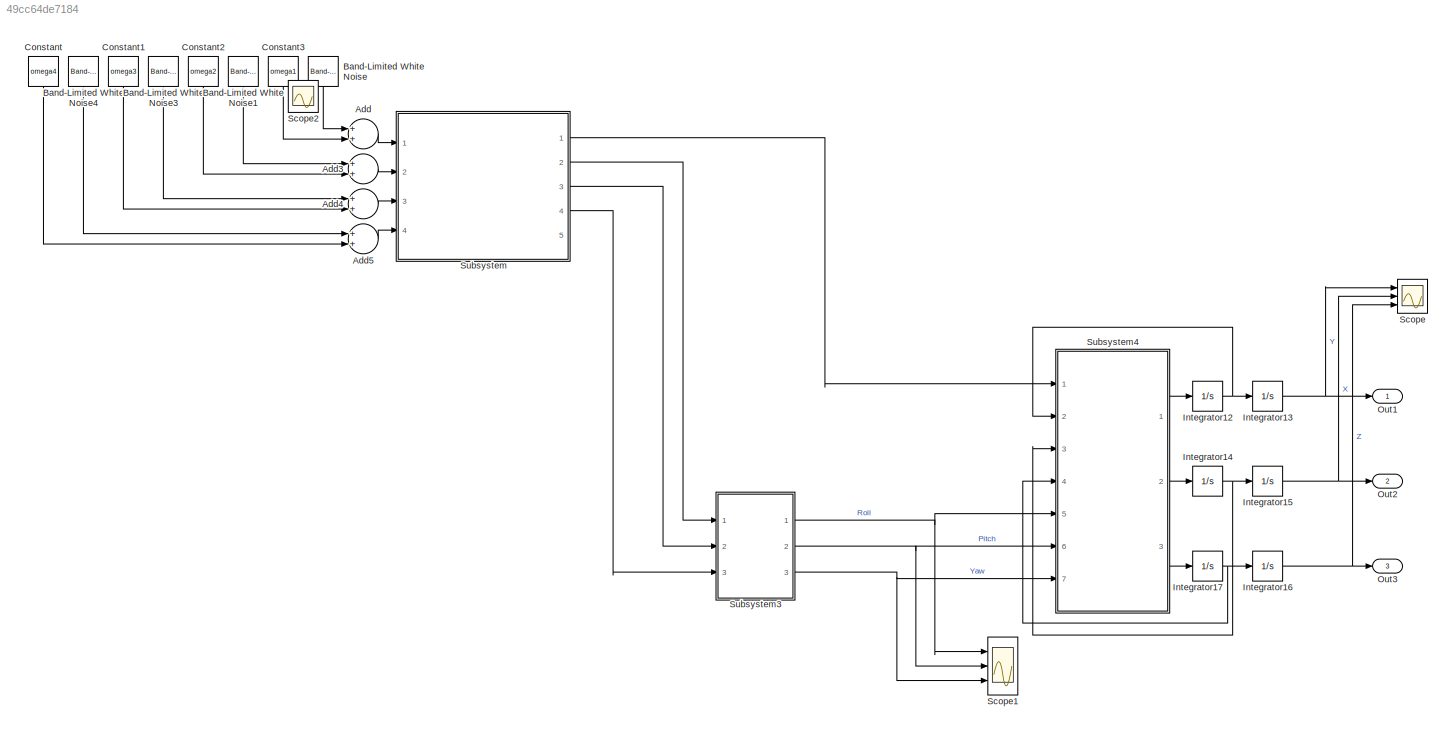
MODEL slx_49cc64de7184
KIND model
CONFIG AbsTol = auto
CONFIG EnableMultiTasking = off
CONFIG FixedStep = auto
CONFIG MaxStep = auto
CONFIG MinStep = auto
CONFIG RelTol = 1e-3
CONFIG SampleTimeConstraint = Unconstrained
CONFIG Solver = VariableStepAuto
CONFIG SolverName = VariableStepAuto
CONFIG StartTime = 0.0
CONFIG StopTime = 30
BLOCK [Sum] Add
  InputSameDT = off
  OutDataTypeStr = Inherit: Inherit via internal rule
  Ports = [2, 1]
  SaturateOnIntegerOverflow = off
BLOCK [Sum] Add3
  InputSameDT = off
  OutDataTypeStr = Inherit: Inherit via internal rule
  Ports = [2, 1]
  SaturateOnIntegerOverflow = off
BLOCK [Sum] Add4
  InputSameDT = off
  OutDataTypeStr = Inherit: Inherit via internal rule
  Ports = [2, 1]
  SaturateOnIntegerOverflow = off
BLOCK [Sum] Add5
  InputSameDT = off
  OutDataTypeStr = Inherit: Inherit via internal rule
  Ports = [2, 1]
  SaturateOnIntegerOverflow = off
BLOCK [Reference] Band-Limited White Noise  REF=simulink/Sources/Band-Limited
White Noise
  Ports = [0, 1]
  SourceBlock = simulink/Sources/Band-Limited\nWhite Noise
  SourceProductBaseCode = SL
  SourceProductName = Simulink
  SourceType = Band-Limited White Noise.
BLOCK [Reference] Band-Limited White Noise1  REF=simulink/Sources/Band-Limited
White Noise
  Ports = [0, 1]
  SourceBlock = simulink/Sources/Band-Limited\nWhite Noise
  SourceProductBaseCode = SL
  SourceProductName = Simulink
  SourceType = Band-Limited White Noise.
BLOCK [Reference] Band-Limited White Noise3  REF=simulink/Sources/Band-Limited
White Noise
  Ports = [0, 1]
  SourceBlock = simulink/Sources/Band-Limited\nWhite Noise
  SourceProductBaseCode = SL
  SourceProductName = Simulink
  SourceType = Band-Limited White Noise.
BLOCK [Reference] Band-Limited White Noise4  REF=simulink/Sources/Band-Limited
White Noise
  Ports = [0, 1]
  SourceBlock = simulink/Sources/Band-Limited\nWhite Noise
  SourceProductBaseCode = SL
  SourceProductName = Simulink
  SourceType = Band-Limited White Noise.
BLOCK [Constant] Constant
  Value = omega4
BLOCK [Constant] Constant1
  Value = omega3
BLOCK [Constant] Constant2
  Value = omega2
BLOCK [Constant] Constant3
  Value = omega1
BLOCK [Integrator] Integrator12
  Ports = [1, 1]
BLOCK [Integrator] Integrator13
  Ports = [1, 1]
BLOCK [Integrator] Integrator14
  Ports = [1, 1]
BLOCK [Integrator] Integrator15
  Ports = [1, 1]
BLOCK [Integrator] Integrator16
  Ports = [1, 1]
BLOCK [Integrator] Integrator17
  Ports = [1, 1]
BLOCK [Outport] Out1
  IconDisplay = Port number
BLOCK [Outport] Out2
  IconDisplay = Port number
  Port = 2
BLOCK [Outport] Out3
  IconDisplay = Port number
  Port = 3
BLOCK [Scope] Scope
  Floating = off
  NumInputPorts = 3
  Ports = [3]
  ScopeSpecificationString = Simulink.scopes.TimeScopeBlockCfg('CurrentConfiguration', extmgr.ConfigurationSet(extmgr.Configuration('Core','General UI',true),extmgr.Configuration('Core','Source UI',true),extmgr.Configuration('Sources','WiredSimulink',true,'DataLoggingVariableName','ScopeData1'),extmgr.Configuration('Visuals','Time Domain',true,'SerializedDisplays',{struct('MinYLimReal','-1102.5524','MaxYLimReal','4415.0885','...<+1524ch>
BLOCK [Scope] Scope1
  Floating = off
  NumInputPorts = 3
  Ports = [3]
  ScopeSpecificationString = Simulink.scopes.TimeScopeBlockCfg('CurrentConfiguration', extmgr.ConfigurationSet(extmgr.Configuration('Core','General UI',true,'FigureColor',[0.941176470588235 0.941176470588235 0.941176470588235]),extmgr.Configuration('Core','Source UI',true),extmgr.Configuration('Sources','WiredSimulink',true,'DataLoggingVariableName','ScopeData1'),extmgr.Configuration('Visuals','Time Domain',true,'SerializedDi...<+1882ch>
BLOCK [Scope] Scope2
  Floating = off
  IOType = viewer
  NumInputPorts = 1
  Ports = []
  ScopeSpecificationString = Simulink.scopes.TimeScopeBlockCfg('CurrentConfiguration', extmgr.ConfigurationSet(extmgr.Configuration('Core','General UI',true),extmgr.Configuration('Core','Source UI',true),extmgr.Configuration('Sources','WiredSimulink',true,'DataLoggingVariableName','ScopeData2'),extmgr.Configuration('Visuals','Time Domain',true,'SerializedDisplays',{struct('MinYLimReal','-0.00174','MaxYLimReal','0.00494','YLab...<+1465ch>
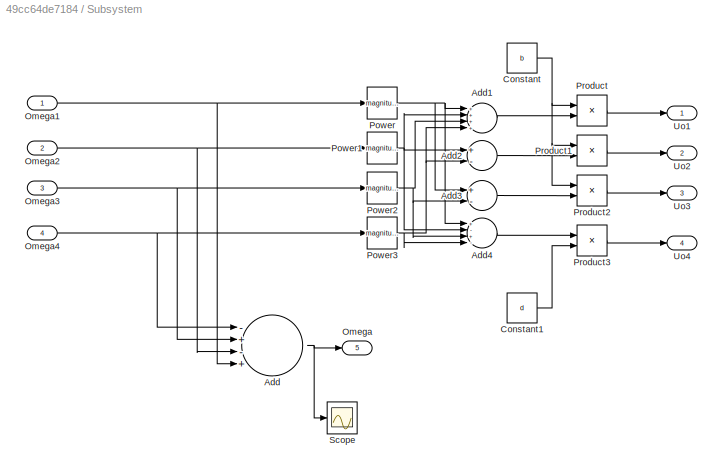
BLOCK [SubSystem] Subsystem
  Ports = [4, 5]
  RequestExecContextInheritance = off
BLOCK [Sum] Subsystem/Add
  InputSameDT = off
  Inputs = -+-+
  OutDataTypeStr = Inherit: Inherit via internal rule
  Ports = [4, 1]
  SaturateOnIntegerOverflow = off
BLOCK [Sum] Subsystem/Add1
  InputSameDT = off
  Inputs = ++++
  OutDataTypeStr = Inherit: Inherit via internal rule
  Ports = [4, 1]
  SaturateOnIntegerOverflow = off
BLOCK [Sum] Subsystem/Add2
  InputSameDT = off
  Inputs = +-
  OutDataTypeStr = Inherit: Inherit via internal rule
  Ports = [2, 1]
  SaturateOnIntegerOverflow = off
BLOCK [Sum] Subsystem/Add3
  InputSameDT = off
  Inputs = +-
  OutDataTypeStr = Inherit: Inherit via internal rule
  Ports = [2, 1]
  SaturateOnIntegerOverflow = off
BLOCK [Sum] Subsystem/Add4
  InputSameDT = off
  Inputs = +-+-
  OutDataTypeStr = Inherit: Inherit via internal rule
  Ports = [4, 1]
  SaturateOnIntegerOverflow = off
BLOCK [Constant] Subsystem/Constant
  Value = b
BLOCK [Constant] Subsystem/Constant1
  Value = d
BLOCK [Outport] Subsystem/Omega
  IconDisplay = Port number
  Port = 5
  VectorParamsAs1DForOutWhenUnconnected = off
BLOCK [Inport] Subsystem/Omega1
  IconDisplay = Port number
BLOCK [Inport] Subsystem/Omega2
  IconDisplay = Port number
  Port = 2
BLOCK [Inport] Subsystem/Omega3
  IconDisplay = Port number
  Port = 3
BLOCK [Inport] Subsystem/Omega4
  IconDisplay = Port number
  Port = 4
BLOCK [Math] Subsystem/Power
  Operator = magnitude^2
  Ports = [1, 1]
BLOCK [Math] Subsystem/Power1
  Operator = magnitude^2
  Ports = [1, 1]
BLOCK [Math] Subsystem/Power2
  Operator = magnitude^2
  Ports = [1, 1]
BLOCK [Math] Subsystem/Power3
  Operator = magnitude^2
  Ports = [1, 1]
BLOCK [Product] Subsystem/Product
  InputSameDT = off
  OutDataTypeStr = Inherit: Inherit via internal rule
  Ports = [2, 1]
  RndMeth = Floor
  SaturateOnIntegerOverflow = off
BLOCK [Product] Subsystem/Product1
  InputSameDT = off
  OutDataTypeStr = Inherit: Inherit via internal rule
  Ports = [2, 1]
  RndMeth = Floor
  SaturateOnIntegerOverflow = off
BLOCK [Product] Subsystem/Product2
  InputSameDT = off
  OutDataTypeStr = Inherit: Inherit via internal rule
  Ports = [2, 1]
  RndMeth = Floor
  SaturateOnIntegerOverflow = off
BLOCK [Product] Subsystem/Product3
  InputSameDT = off
  OutDataTypeStr = Inherit: Inherit via internal rule
  Ports = [2, 1]
  RndMeth = Floor
  SaturateOnIntegerOverflow = off
BLOCK [Scope] Subsystem/Scope
  Floating = off
  NumInputPorts = 1
  Ports = [1]
  ScopeSpecificationString = Simulink.scopes.TimeScopeBlockCfg('CurrentConfiguration', extmgr.ConfigurationSet(extmgr.Configuration('Core','General UI',true),extmgr.Configuration('Core','Source UI',true),extmgr.Configuration('Sources','WiredSimulink',true,'DataLoggingVariableName','ScopeData1'),extmgr.Configuration('Visuals','Time Domain',true,'SerializedDisplays',{struct('MinYLimReal','-35.00000','MaxYLimReal','-15.00000','Y...<+1412ch>
BLOCK [Outport] Subsystem/Uo1
  IconDisplay = Port number
  VectorParamsAs1DForOutWhenUnconnected = off
BLOCK [Outport] Subsystem/Uo2
  IconDisplay = Port number
  Port = 2
  VectorParamsAs1DForOutWhenUnconnected = off
BLOCK [Outport] Subsystem/Uo3
  IconDisplay = Port number
  Port = 3
  VectorParamsAs1DForOutWhenUnconnected = off
BLOCK [Outport] Subsystem/Uo4
  IconDisplay = Port number
  Port = 4
  VectorParamsAs1DForOutWhenUnconnected = off
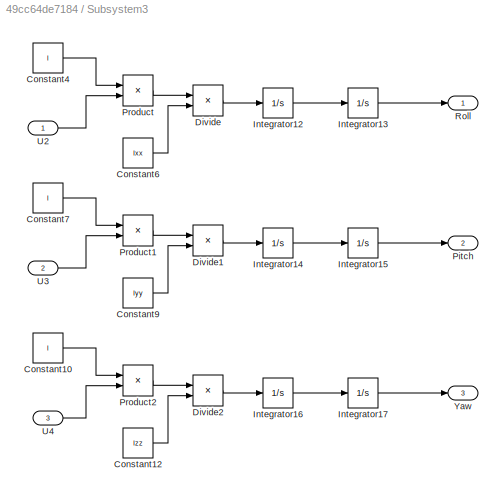
BLOCK [SubSystem] Subsystem3
  Ports = [3, 3]
  RequestExecContextInheritance = off
BLOCK [Constant] Subsystem3/Constant10
  Value = l
BLOCK [Constant] Subsystem3/Constant12
  Value = Izz
BLOCK [Constant] Subsystem3/Constant4
  Value = l
BLOCK [Constant] Subsystem3/Constant6
  Value = Ixx
BLOCK [Constant] Subsystem3/Constant7
  Value = l
BLOCK [Constant] Subsystem3/Constant9
  Value = Iyy
BLOCK [Product] Subsystem3/Divide
  InputSameDT = off
  Inputs = */
  OutDataTypeStr = Inherit: Inherit via internal rule
  Ports = [2, 1]
  RndMeth = Floor
  SaturateOnIntegerOverflow = off
BLOCK [Product] Subsystem3/Divide1
  InputSameDT = off
  Inputs = */
  OutDataTypeStr = Inherit: Inherit via internal rule
  Ports = [2, 1]
  RndMeth = Floor
  SaturateOnIntegerOverflow = off
BLOCK [Product] Subsystem3/Divide2
  InputSameDT = off
  Inputs = */
  OutDataTypeStr = Inherit: Inherit via internal rule
  Ports = [2, 1]
  RndMeth = Floor
  SaturateOnIntegerOverflow = off
BLOCK [Integrator] Subsystem3/Integrator12
  Ports = [1, 1]
BLOCK [Integrator] Subsystem3/Integrator13
  Ports = [1, 1]
BLOCK [Integrator] Subsystem3/Integrator14
  Ports = [1, 1]
BLOCK [Integrator] Subsystem3/Integrator15
  Ports = [1, 1]
BLOCK [Integrator] Subsystem3/Integrator16
  Ports = [1, 1]
BLOCK [Integrator] Subsystem3/Integrator17
  Ports = [1, 1]
BLOCK [Outport] Subsystem3/Pitch
  IconDisplay = Port number
  Port = 2
BLOCK [Product] Subsystem3/Product
  InputSameDT = off
  OutDataTypeStr = Inherit: Inherit via internal rule
  Ports = [2, 1]
  RndMeth = Floor
  SaturateOnIntegerOverflow = off
BLOCK [Product] Subsystem3/Product1
  InputSameDT = off
  OutDataTypeStr = Inherit: Inherit via internal rule
  Ports = [2, 1]
  RndMeth = Floor
  SaturateOnIntegerOverflow = off
BLOCK [Product] Subsystem3/Product2
  InputSameDT = off
  OutDataTypeStr = Inherit: Inherit via internal rule
  Ports = [2, 1]
  RndMeth = Floor
  SaturateOnIntegerOverflow = off
BLOCK [Outport] Subsystem3/Roll
  IconDisplay = Port number
BLOCK [Inport] Subsystem3/U2
  IconDisplay = Port number
BLOCK [Inport] Subsystem3/U3
  IconDisplay = Port number
  Port = 2
BLOCK [Inport] Subsystem3/U4
  IconDisplay = Port number
  Port = 3
BLOCK [Outport] Subsystem3/Yaw
  IconDisplay = Port number
  Port = 3
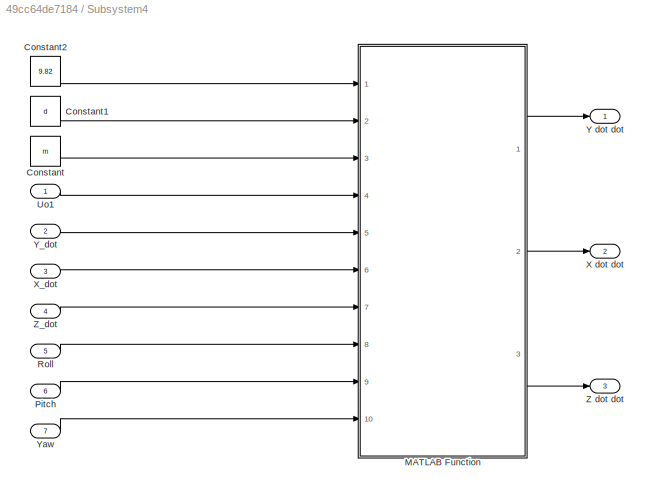
BLOCK [SubSystem] Subsystem4
  Ports = [7, 3]
  RequestExecContextInheritance = off
BLOCK [Constant] Subsystem4/Constant
  Value = m
BLOCK [Constant] Subsystem4/Constant1
  Value = d
BLOCK [Constant] Subsystem4/Constant2
  Value = 9.82
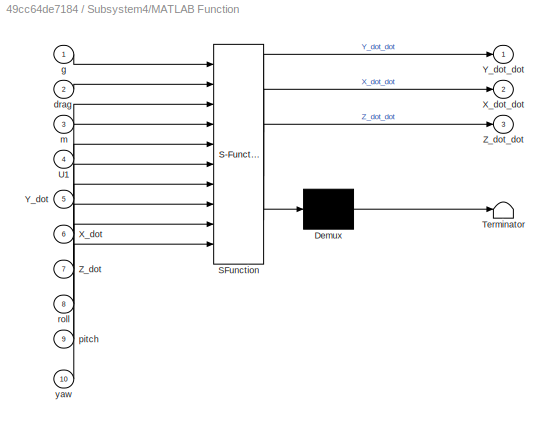
BLOCK [SubSystem] Subsystem4/MATLAB Function
  ErrorFcn = Stateflow.Translate.translate
  PermitHierarchicalResolution = ExplicitOnly
  Ports = [10, 3]
  RequestExecContextInheritance = off
  SFBlockType = MATLAB Function
  TreatAsAtomicUnit = on
BLOCK [Demux] Subsystem4/MATLAB Function/ Demux 
  Outputs = 1
  Ports = [1, 1]
BLOCK [S-Function] Subsystem4/MATLAB Function/ SFunction 
  EnableBusSupport = on
  FunctionName = sf_sfun
  PortCounts = [10 4]
  Ports = [10, 4]
  SFcnIsStateOwnerBlock = off
  SFunctionDeploymentMode = off
  Tag = Stateflow S-Function 1
BLOCK [Terminator] Subsystem4/MATLAB Function/ Terminator 
BLOCK [Inport] Subsystem4/MATLAB Function/U1
  IconDisplay = Port number
  Port = 4
BLOCK [Inport] Subsystem4/MATLAB Function/X_dot
  IconDisplay = Port number
  Port = 6
BLOCK [Outport] Subsystem4/MATLAB Function/X_dot_dot
  IconDisplay = Port number
  Port = 2
  VectorParamsAs1DForOutWhenUnconnected = off
BLOCK [Inport] Subsystem4/MATLAB Function/Y_dot
  IconDisplay = Port number
  Port = 5
BLOCK [Outport] Subsystem4/MATLAB Function/Y_dot_dot
  IconDisplay = Port number
  VectorParamsAs1DForOutWhenUnconnected = off
BLOCK [Inport] Subsystem4/MATLAB Function/Z_dot
  IconDisplay = Port number
  Port = 7
BLOCK [Outport] Subsystem4/MATLAB Function/Z_dot_dot
  IconDisplay = Port number
  Port = 3
  VectorParamsAs1DForOutWhenUnconnected = off
BLOCK [Inport] Subsystem4/MATLAB Function/drag
  IconDisplay = Port number
  Port = 2
BLOCK [Inport] Subsystem4/MATLAB Function/g
  IconDisplay = Port number
BLOCK [Inport] Subsystem4/MATLAB Function/m
  IconDisplay = Port number
  Port = 3
BLOCK [Inport] Subsystem4/MATLAB Function/pitch
  IconDisplay = Port number
  Port = 9
BLOCK [Inport] Subsystem4/MATLAB Function/roll
  IconDisplay = Port number
  Port = 8
BLOCK [Inport] Subsystem4/MATLAB Function/yaw
  IconDisplay = Port number
  Port = 10
BLOCK [Inport] Subsystem4/Pitch
  IconDisplay = Port number
  Port = 6
BLOCK [Inport] Subsystem4/Roll
  IconDisplay = Port number
  Port = 5
BLOCK [Inport] Subsystem4/Uo1
  IconDisplay = Port number
BLOCK [Outport] Subsystem4/X dot dot
  IconDisplay = Port number
  Port = 2
  VectorParamsAs1DForOutWhenUnconnected = off
BLOCK [Inport] Subsystem4/X_dot
  IconDisplay = Port number
  Port = 3
BLOCK [Outport] Subsystem4/Y dot dot
  IconDisplay = Port number
  VectorParamsAs1DForOutWhenUnconnected = off
BLOCK [Inport] Subsystem4/Y_dot
  IconDisplay = Port number
  Port = 2
BLOCK [Inport] Subsystem4/Yaw
  IconDisplay = Port number
  Port = 7
BLOCK [Outport] Subsystem4/Z dot dot
  IconDisplay = Port number
  Port = 3
  VectorParamsAs1DForOutWhenUnconnected = off
BLOCK [Inport] Subsystem4/Z_dot
  IconDisplay = Port number
  Port = 4
LINE Add3:1 -> Subsystem:2
LINE Add4:1 -> Subsystem:3
LINE Add5:1 -> Subsystem:4
LINE Add:1 -> Subsystem:1
LINE Band-Limited White Noise1:1 -> Add3:1
LINE Band-Limited White Noise3:1 -> Add4:1
LINE Band-Limited White Noise4:1 -> Add5:1
LINE Band-Limited White Noise:1 -> Add:1
LINE Constant1:1 -> Add4:2
LINE Constant2:1 -> Add3:2
LINE Constant3:1 -> Add:2
LINE Constant:1 -> Add5:2
NET Integrator12:1 -> Integrator13:1, Subsystem4:2
NET Integrator13:1 -> Out1:1, Scope:1
NET Integrator14:1 -> Integrator15:1, Subsystem4:3
NET Integrator15:1 -> Out2:1, Scope:2
NET Integrator16:1 -> Out3:1, Scope:3
NET Integrator17:1 -> Integrator16:1, Subsystem4:4
LINE Subsystem/Add1:1 -> Subsystem/Product:2
LINE Subsystem/Add2:1 -> Subsystem/Product1:2
LINE Subsystem/Add3:1 -> Subsystem/Product2:2
LINE Subsystem/Add4:1 -> Subsystem/Product3:1
NET Subsystem/Add:1 -> Subsystem/Omega:1, Subsystem/Scope:1
LINE Subsystem/Constant1:1 -> Subsystem/Product3:2
NET Subsystem/Constant:1 -> Subsystem/Product1:1, Subsystem/Product2:1, Subsystem/Product:1
NET Subsystem/Omega1:1 -> Subsystem/Add:4, Subsystem/Power:1
NET Subsystem/Omega2:1 -> Subsystem/Add:3, Subsystem/Power1:1
NET Subsystem/Omega3:1 -> Subsystem/Add:2, Subsystem/Power2:1
NET Subsystem/Omega4:1 -> Subsystem/Add:1, Subsystem/Power3:1
NET Subsystem/Power1:1 -> Subsystem/Add1:2, Subsystem/Add2:1, Subsystem/Add4:2
NET Subsystem/Power2:1 -> Subsystem/Add1:3, Subsystem/Add3:2, Subsystem/Add4:3
NET Subsystem/Power3:1 -> Subsystem/Add1:4, Subsystem/Add2:2, Subsystem/Add4:4
NET Subsystem/Power:1 -> Subsystem/Add1:1, Subsystem/Add3:1, Subsystem/Add4:1
LINE Subsystem/Product1:1 -> Subsystem/Uo2:1
LINE Subsystem/Product2:1 -> Subsystem/Uo3:1
LINE Subsystem/Product3:1 -> Subsystem/Uo4:1
LINE Subsystem/Product:1 -> Subsystem/Uo1:1
LINE Subsystem3/Constant10:1 -> Subsystem3/Product2:1
LINE Subsystem3/Constant12:1 -> Subsystem3/Divide2:2
LINE Subsystem3/Constant4:1 -> Subsystem3/Product:1
LINE Subsystem3/Constant6:1 -> Subsystem3/Divide:2
LINE Subsystem3/Constant7:1 -> Subsystem3/Product1:1
LINE Subsystem3/Constant9:1 -> Subsystem3/Divide1:2
LINE Subsystem3/Divide1:1 -> Subsystem3/Integrator14:1
LINE Subsystem3/Divide2:1 -> Subsystem3/Integrator16:1
LINE Subsystem3/Divide:1 -> Subsystem3/Integrator12:1
LINE Subsystem3/Integrator12:1 -> Subsystem3/Integrator13:1
LINE Subsystem3/Integrator13:1 -> Subsystem3/Roll:1
LINE Subsystem3/Integrator14:1 -> Subsystem3/Integrator15:1
LINE Subsystem3/Integrator15:1 -> Subsystem3/Pitch:1
LINE Subsystem3/Integrator16:1 -> Subsystem3/Integrator17:1
LINE Subsystem3/Integrator17:1 -> Subsystem3/Yaw:1
LINE Subsystem3/Product1:1 -> Subsystem3/Divide1:1
LINE Subsystem3/Product2:1 -> Subsystem3/Divide2:1
LINE Subsystem3/Product:1 -> Subsystem3/Divide:1
LINE Subsystem3/U2:1 -> Subsystem3/Product:2
LINE Subsystem3/U3:1 -> Subsystem3/Product1:2
LINE Subsystem3/U4:1 -> Subsystem3/Product2:2
NET Subsystem3:1 -> Scope1:1, Subsystem4:5
NET Subsystem3:2 -> Scope1:2, Subsystem4:6
NET Subsystem3:3 -> Scope1:3, Subsystem4:7
LINE Subsystem4/Constant1:1 -> Subsystem4/MATLAB Function:2
LINE Subsystem4/Constant2:1 -> Subsystem4/MATLAB Function:1
LINE Subsystem4/Constant:1 -> Subsystem4/MATLAB Function:3
LINE Subsystem4/MATLAB Function:1 -> Subsystem4/Y dot dot:1
LINE Subsystem4/MATLAB Function:2 -> Subsystem4/X dot dot:1
LINE Subsystem4/MATLAB Function:3 -> Subsystem4/Z dot dot:1
LINE Subsystem4/Pitch:1 -> Subsystem4/MATLAB Function:9
LINE Subsystem4/Roll:1 -> Subsystem4/MATLAB Function:8
LINE Subsystem4/Uo1:1 -> Subsystem4/MATLAB Function:4
LINE Subsystem4/X_dot:1 -> Subsystem4/MATLAB Function:6
LINE Subsystem4/Y_dot:1 -> Subsystem4/MATLAB Function:5
LINE Subsystem4/Yaw:1 -> Subsystem4/MATLAB Function:10
LINE Subsystem4/Z_dot:1 -> Subsystem4/MATLAB Function:7
LINE Subsystem4:1 -> Integrator12:1
LINE Subsystem4:2 -> Integrator14:1
LINE Subsystem4:3 -> Integrator17:1
LINE Subsystem:1 -> Subsystem4:1
LINE Subsystem:2 -> Subsystem3:1
LINE Subsystem:3 -> Subsystem3:2
LINE Subsystem:4 -> Subsystem3:3
note: NET lines group one-source signal fan-out (src -> all destinations, sorted); 1:1 wires keep LINE
CHART Subsystem4/MATLAB Function states=1 transitions=1
  STATE_LABEL 'eML_blk_kernel()'
  STATE_LABEL 'SCRIPT:\nfunction [Y_dot_dot,X_dot_dot, Z_dot_dot] = fcn(g, drag, m, U1, Y_dot, X_dot, Z_dot, roll, pitch, yaw)\n\nY_dot_dot = (((cos(yaw)*sin(roll)+sin(yaw)*sin(pitch)*cos(roll)))*U1)/m;\nX_dot_dot = (((sin(yaw)*sin(roll)-cos(yaw)*sin(pitch)*cos(roll)))*U1)/m;\nZ_dot_dot = (m*g-(cos(pitch)*cos(roll))*U1)/m;\n\n'
